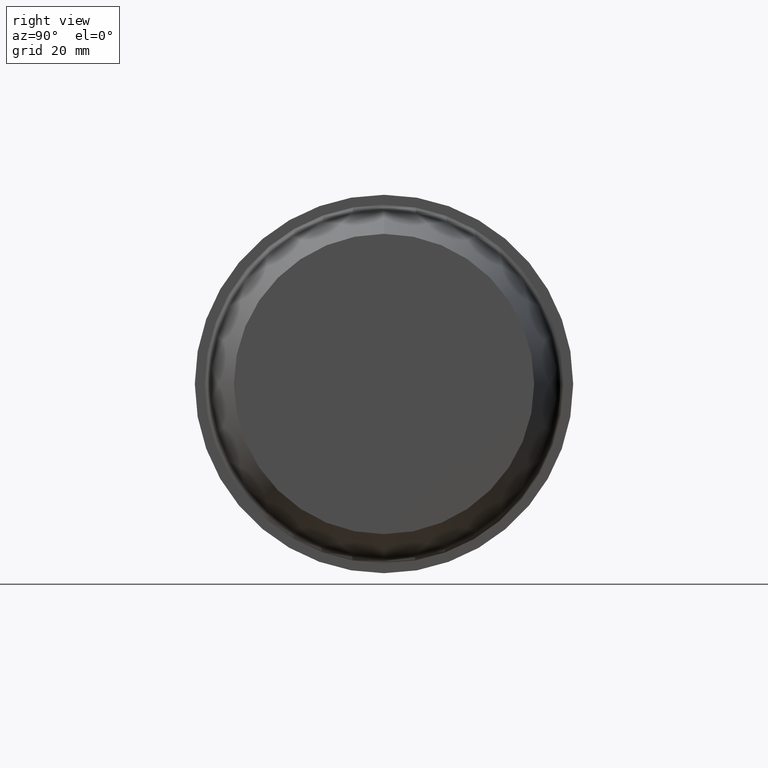
[diagram: clean part render]
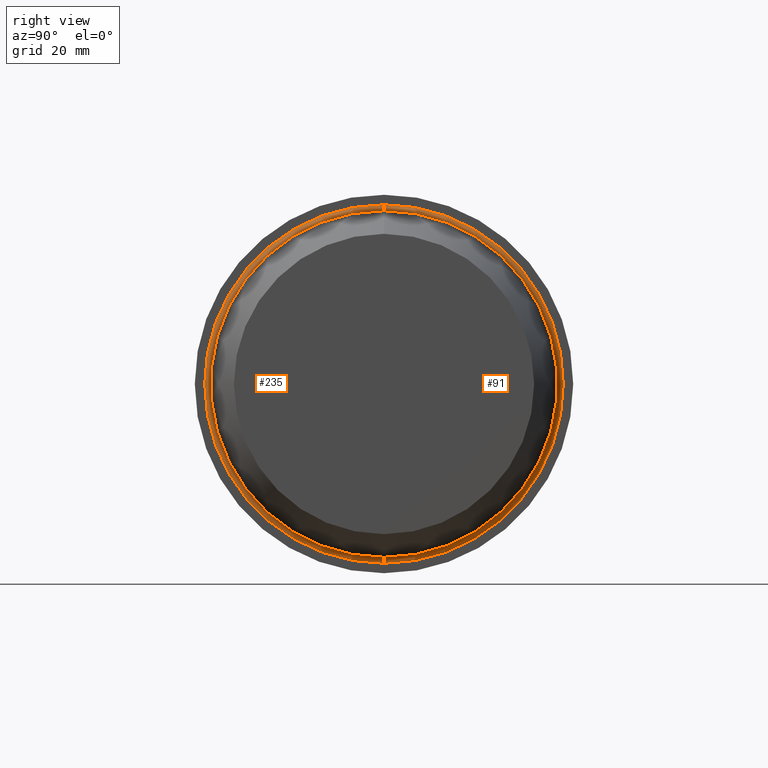
[diagram: same view with one multi-face feature highlighted, each face labeled with its STEP entity id]
A machine part, right view. The highlighted faces form ONE feature: a constant-radius fillet chain: 2 tangent blend faces with common blend radius 1 mm. The faces share edges in the B-rep.
Their STEP definitions:
[1] entity #91 (Torus):
#14 = TOROIDAL_SURFACE ( 'NONE', #237, 29.84109714520806378, 0.9999999989799999156 ) ;
#26 = DIRECTION ( 'NONE',  ( 0.000000000000000000, 1.000000000000000000, -1.224646799147350002E-16 ) ) ;
#30 = EDGE_CURVE ( 'NONE', #42, #107, #145, .T. ) ;
#42 = VERTEX_POINT ( 'NONE', #320 ) ;
#43 = CIRCLE ( 'NONE', #360, 29.84109714956208137 ) ;
#44 = DIRECTION ( 'NONE',  ( 0.000000000000000000, -1.000000000000000000, 0.000000000000000000 ) ) ;
#45 = CARTESIAN_POINT ( 'NONE',  ( 21.99999997755999814, 0.000000000000000000, 0.000000000000000000 ) ) ;
#48 = DIRECTION ( 'NONE',  ( 0.000000000000000000, 0.000000000000000000, -1.000000000000000000 ) ) ;
#56 = AXIS2_PLACEMENT_3D ( 'NONE', #208, #26, #383 ) ;
#58 = EDGE_CURVE ( 'NONE', #374, #107, #43, .T. ) ;
#71 = VERTEX_POINT ( 'NONE', #210 ) ;
#91 = ADVANCED_FACE ( 'NONE', ( #253 ), #14, .F. ) ;
#96 = CARTESIAN_POINT ( 'NONE',  ( 21.99999997755999814, 3.654480410459031947E-15, 29.84109714738507435 ) ) ;
#107 = VERTEX_POINT ( 'NONE', #96 ) ;
#108 = DIRECTION ( 'NONE',  ( 0.000000000000000000, 0.000000000000000000, -1.000000000000000000 ) ) ;
#131 = ORIENTED_EDGE ( 'NONE', *, *, #30, .F. ) ;
#137 = DIRECTION ( 'NONE',  ( 1.000000000000000000, 0.000000000000000000, 0.000000000000000000 ) ) ;
#142 = DIRECTION ( 'NONE',  ( 0.000000000000000000, 0.000000000000000000, -1.000000000000000000 ) ) ;
#145 = CIRCLE ( 'NONE', #56, 0.9999999989800008038 ) ;
#174 = AXIS2_PLACEMENT_3D ( 'NONE', #230, #137, #48 ) ;
#176 = CIRCLE ( 'NONE', #174, 28.85588539056699631 ) ;
#208 = CARTESIAN_POINT ( 'NONE',  ( 22.99999997654000339, 3.654480410192425360E-15, 29.84109714520806378 ) ) ;
#210 = CARTESIAN_POINT ( 'NONE',  ( 22.82865880671476688, 3.533826768012075119E-15, -28.85588539056699631 ) ) ;
#212 = AXIS2_PLACEMENT_3D ( 'NONE', #259, #44, #108 ) ;
#226 = ORIENTED_EDGE ( 'NONE', *, *, #363, .F. ) ;
#228 = DIRECTION ( 'NONE',  ( 1.000000000000000000, 0.000000000000000000, 0.000000000000000000 ) ) ;
#230 = CARTESIAN_POINT ( 'NONE',  ( 22.82865880671476688, 0.000000000000000000, 0.000000000000000000 ) ) ;
#237 = AXIS2_PLACEMENT_3D ( 'NONE', #339, #272, #368 ) ;
#253 = FACE_OUTER_BOUND ( 'NONE', #313, .T. ) ;
#259 = CARTESIAN_POINT ( 'NONE',  ( 22.99999997654000339, 0.000000000000000000, -29.84109714520806378 ) ) ;
#265 = EDGE_CURVE ( 'NONE', #71, #374, #379, .T. ) ;
#272 = DIRECTION ( 'NONE',  ( 1.000000000000000000, 0.000000000000000000, 0.000000000000000000 ) ) ;
#288 = ORIENTED_EDGE ( 'NONE', *, *, #265, .T. ) ;
#313 = EDGE_LOOP ( 'NONE', ( #131, #226, #288, #344 ) ) ;
#320 = CARTESIAN_POINT ( 'NONE',  ( 22.82865880671476688, 0.000000000000000000, 28.85588539056699631 ) ) ;
#339 = CARTESIAN_POINT ( 'NONE',  ( 22.99999997654000339, 0.000000000000000000, 0.000000000000000000 ) ) ;
#344 = ORIENTED_EDGE ( 'NONE', *, *, #58, .T. ) ;
#360 = AXIS2_PLACEMENT_3D ( 'NONE', #45, #228, #142 ) ;
#363 = EDGE_CURVE ( 'NONE', #71, #42, #176, .T. ) ;
#368 = DIRECTION ( 'NONE',  ( 0.000000000000000000, 0.000000000000000000, -1.000000000000000000 ) ) ;
#374 = VERTEX_POINT ( 'NONE', #375 ) ;
#375 = CARTESIAN_POINT ( 'NONE',  ( 21.99999997755999814, 0.000000000000000000, -29.84109714738507435 ) ) ;
#379 = CIRCLE ( 'NONE', #212, 0.9999999989800008038 ) ;
#383 = DIRECTION ( 'NONE',  ( 0.000000000000000000, 1.224646799147346551E-16, 1.000000000000000000 ) ) ;
[2] entity #235 (Torus):
#6 = TOROIDAL_SURFACE ( 'NONE', #159, 29.84109714520806378, 0.9999999989799999156 ) ;
#10 = EDGE_LOOP ( 'NONE', ( #102, #291, #168, #47 ) ) ;
#19 = DIRECTION ( 'NONE',  ( 0.000000000000000000, 0.000000000000000000, -1.000000000000000000 ) ) ;
#26 = DIRECTION ( 'NONE',  ( 0.000000000000000000, 1.000000000000000000, -1.224646799147350002E-16 ) ) ;
#30 = EDGE_CURVE ( 'NONE', #42, #107, #145, .T. ) ;
#37 = EDGE_CURVE ( 'NONE', #107, #374, #120, .T. ) ;
#39 = FACE_OUTER_BOUND ( 'NONE', #10, .T. ) ;
#42 = VERTEX_POINT ( 'NONE', #320 ) ;
#44 = DIRECTION ( 'NONE',  ( 0.000000000000000000, -1.000000000000000000, 0.000000000000000000 ) ) ;
#47 = ORIENTED_EDGE ( 'NONE', *, *, #265, .F. ) ;
#52 = CARTESIAN_POINT ( 'NONE',  ( 21.99999997755999814, 0.000000000000000000, 0.000000000000000000 ) ) ;
#56 = AXIS2_PLACEMENT_3D ( 'NONE', #208, #26, #383 ) ;
#71 = VERTEX_POINT ( 'NONE', #210 ) ;
#96 = CARTESIAN_POINT ( 'NONE',  ( 21.99999997755999814, 3.654480410459031947E-15, 29.84109714738507435 ) ) ;
#102 = ORIENTED_EDGE ( 'NONE', *, *, #349, .F. ) ;
#107 = VERTEX_POINT ( 'NONE', #96 ) ;
#108 = DIRECTION ( 'NONE',  ( 0.000000000000000000, 0.000000000000000000, -1.000000000000000000 ) ) ;
#120 = CIRCLE ( 'NONE', #353, 29.84109714956208137 ) ;
#130 = CARTESIAN_POINT ( 'NONE',  ( 22.99999997654000339, 0.000000000000000000, 0.000000000000000000 ) ) ;
#145 = CIRCLE ( 'NONE', #56, 0.9999999989800008038 ) ;
#159 = AXIS2_PLACEMENT_3D ( 'NONE', #130, #223, #196 ) ;
#168 = ORIENTED_EDGE ( 'NONE', *, *, #37, .T. ) ;
#179 = DIRECTION ( 'NONE',  ( 0.000000000000000000, 0.000000000000000000, -1.000000000000000000 ) ) ;
#196 = DIRECTION ( 'NONE',  ( 0.000000000000000000, 0.000000000000000000, -1.000000000000000000 ) ) ;
#200 = CARTESIAN_POINT ( 'NONE',  ( 22.82865880671476688, 0.000000000000000000, 0.000000000000000000 ) ) ;
#208 = CARTESIAN_POINT ( 'NONE',  ( 22.99999997654000339, 3.654480410192425360E-15, 29.84109714520806378 ) ) ;
#210 = CARTESIAN_POINT ( 'NONE',  ( 22.82865880671476688, 3.533826768012075119E-15, -28.85588539056699631 ) ) ;
#212 = AXIS2_PLACEMENT_3D ( 'NONE', #259, #44, #108 ) ;
#223 = DIRECTION ( 'NONE',  ( 1.000000000000000000, 0.000000000000000000, 0.000000000000000000 ) ) ;
#231 = DIRECTION ( 'NONE',  ( 1.000000000000000000, 0.000000000000000000, 0.000000000000000000 ) ) ;
#235 = ADVANCED_FACE ( 'NONE', ( #39 ), #6, .F. ) ;
#242 = AXIS2_PLACEMENT_3D ( 'NONE', #200, #351, #19 ) ;
#259 = CARTESIAN_POINT ( 'NONE',  ( 22.99999997654000339, 0.000000000000000000, -29.84109714520806378 ) ) ;
#265 = EDGE_CURVE ( 'NONE', #71, #374, #379, .T. ) ;
#291 = ORIENTED_EDGE ( 'NONE', *, *, #30, .T. ) ;
#320 = CARTESIAN_POINT ( 'NONE',  ( 22.82865880671476688, 0.000000000000000000, 28.85588539056699631 ) ) ;
#349 = EDGE_CURVE ( 'NONE', #42, #71, #361, .T. ) ;
#351 = DIRECTION ( 'NONE',  ( 1.000000000000000000, 0.000000000000000000, 0.000000000000000000 ) ) ;
#353 = AXIS2_PLACEMENT_3D ( 'NONE', #52, #231, #179 ) ;
#361 = CIRCLE ( 'NONE', #242, 28.85588539056699631 ) ;
#374 = VERTEX_POINT ( 'NONE', #375 ) ;
#375 = CARTESIAN_POINT ( 'NONE',  ( 21.99999997755999814, 0.000000000000000000, -29.84109714738507435 ) ) ;
#379 = CIRCLE ( 'NONE', #212, 0.9999999989800008038 ) ;
#383 = DIRECTION ( 'NONE',  ( 0.000000000000000000, 1.224646799147346551E-16, 1.000000000000000000 ) ) ;